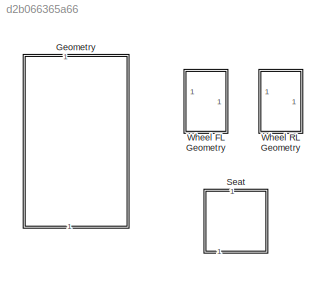
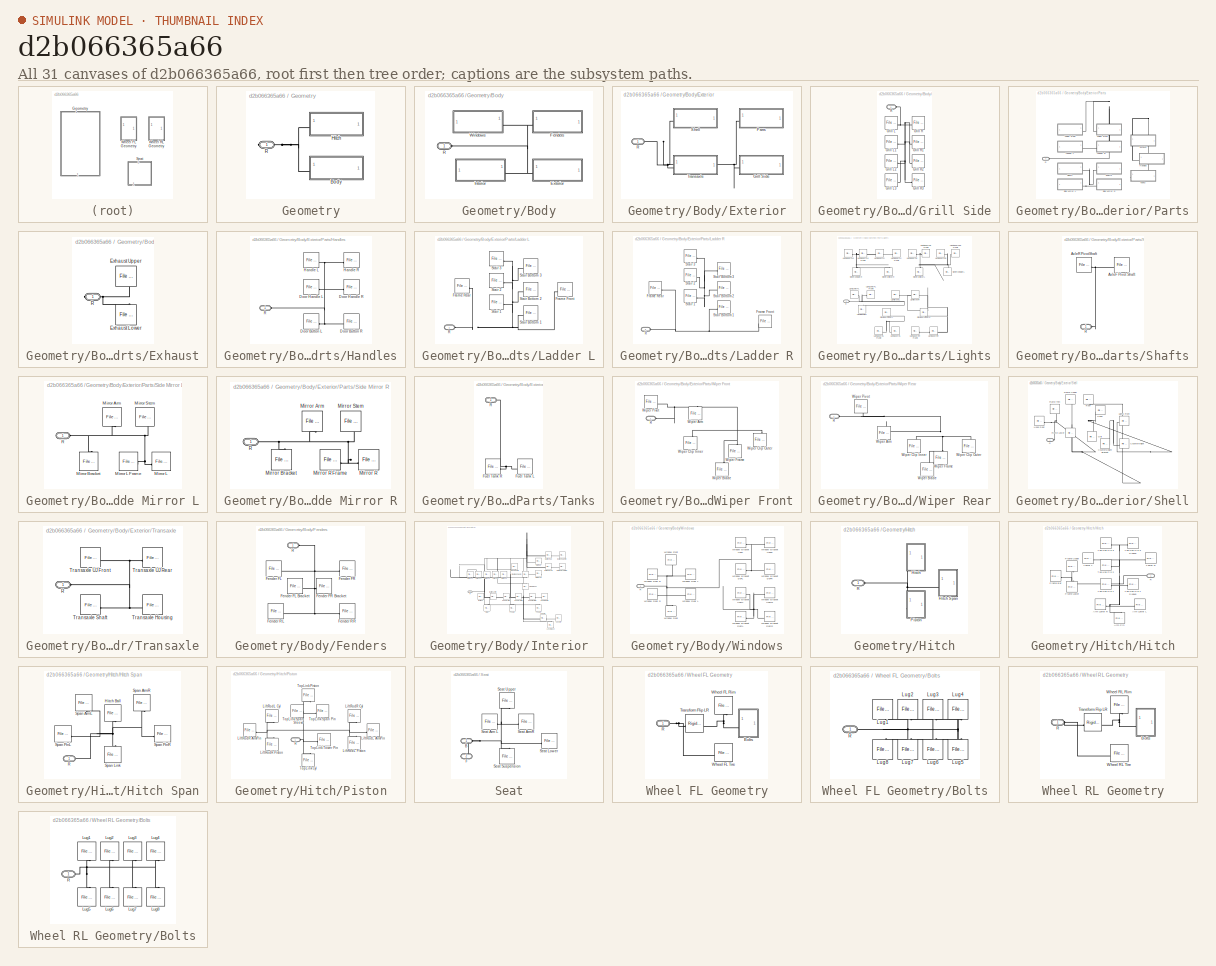
[diagram: thumbnail index - all 31 canvases of the model, root first then tree order]
MODEL slx_d2b066365a66
KIND library
CONFIG SolverName = VariableStepAuto
BLOCK [SubSystem] Geometry
BLOCK [SubSystem] Geometry/Body
BLOCK [SubSystem] Geometry/Body/Exterior
BLOCK [SubSystem] Geometry/Body/Exterior/Grill Side
BLOCK [Reference] Geometry/Body/Exterior/Grill Side/Grill L  REF=sm_lib/Body Elements/File Solid
  SourceBlock = sm_lib/Body Elements/File Solid
  SourceType = File Solid
BLOCK [Reference] Geometry/Body/Exterior/Grill Side/Grill L1  REF=sm_lib/Body Elements/File Solid
  SourceBlock = sm_lib/Body Elements/File Solid
  SourceType = File Solid
BLOCK [Reference] Geometry/Body/Exterior/Grill Side/Grill L2  REF=sm_lib/Body Elements/File Solid
  SourceBlock = sm_lib/Body Elements/File Solid
  SourceType = File Solid
BLOCK [Reference] Geometry/Body/Exterior/Grill Side/Grill L3  REF=sm_lib/Body Elements/File Solid
  SourceBlock = sm_lib/Body Elements/File Solid
  SourceType = File Solid
BLOCK [Reference] Geometry/Body/Exterior/Grill Side/Grill R  REF=sm_lib/Body Elements/File Solid
  SourceBlock = sm_lib/Body Elements/File Solid
  SourceType = File Solid
BLOCK [Reference] Geometry/Body/Exterior/Grill Side/Grill R1  REF=sm_lib/Body Elements/File Solid
  SourceBlock = sm_lib/Body Elements/File Solid
  SourceType = File Solid
BLOCK [Reference] Geometry/Body/Exterior/Grill Side/Grill R2  REF=sm_lib/Body Elements/File Solid
  SourceBlock = sm_lib/Body Elements/File Solid
  SourceType = File Solid
BLOCK [Reference] Geometry/Body/Exterior/Grill Side/Grill R3  REF=sm_lib/Body Elements/File Solid
  SourceBlock = sm_lib/Body Elements/File Solid
  SourceType = File Solid
BLOCK [PMIOPort] Geometry/Body/Exterior/Grill Side/R
  Side = Left
BLOCK [SubSystem] Geometry/Body/Exterior/Parts
BLOCK [SubSystem] Geometry/Body/Exterior/Parts/Exhaust
BLOCK [Reference] Geometry/Body/Exterior/Parts/Exhaust/Exhaust Lower  REF=sm_lib/Body Elements/File Solid
  SourceBlock = sm_lib/Body Elements/File Solid
  SourceType = File Solid
BLOCK [Reference] Geometry/Body/Exterior/Parts/Exhaust/Exhaust Upper  REF=sm_lib/Body Elements/File Solid
  NameLocation = top
  SourceBlock = sm_lib/Body Elements/File Solid
  SourceType = File Solid
BLOCK [PMIOPort] Geometry/Body/Exterior/Parts/Exhaust/R
  Side = Right
BLOCK [SubSystem] Geometry/Body/Exterior/Parts/Handles
BLOCK [Reference] Geometry/Body/Exterior/Parts/Handles/Door Button L  REF=sm_lib/Body Elements/File Solid
  SourceBlock = sm_lib/Body Elements/File Solid
  SourceType = File Solid
BLOCK [Reference] Geometry/Body/Exterior/Parts/Handles/Door Button R  REF=sm_lib/Body Elements/File Solid
  SourceBlock = sm_lib/Body Elements/File Solid
  SourceType = File Solid
BLOCK [Reference] Geometry/Body/Exterior/Parts/Handles/Door Handle L  REF=sm_lib/Body Elements/File Solid
  SourceBlock = sm_lib/Body Elements/File Solid
  SourceType = File Solid
BLOCK [Reference] Geometry/Body/Exterior/Parts/Handles/Door Handle R  REF=sm_lib/Body Elements/File Solid
  SourceBlock = sm_lib/Body Elements/File Solid
  SourceType = File Solid
BLOCK [Reference] Geometry/Body/Exterior/Parts/Handles/Handle L  REF=sm_lib/Body Elements/File Solid
  SourceBlock = sm_lib/Body Elements/File Solid
  SourceType = File Solid
BLOCK [Reference] Geometry/Body/Exterior/Parts/Handles/Handle R  REF=sm_lib/Body Elements/File Solid
  SourceBlock = sm_lib/Body Elements/File Solid
  SourceType = File Solid
BLOCK [PMIOPort] Geometry/Body/Exterior/Parts/Handles/R
  Side = Left
BLOCK [SubSystem] Geometry/Body/Exterior/Parts/Ladder L
BLOCK [Reference] Geometry/Body/Exterior/Parts/Ladder L/Frame Front  REF=sm_lib/Body Elements/File Solid
  SourceBlock = sm_lib/Body Elements/File Solid
  SourceType = File Solid
BLOCK [Reference] Geometry/Body/Exterior/Parts/Ladder L/Frame Rear  REF=sm_lib/Body Elements/File Solid
  SourceBlock = sm_lib/Body Elements/File Solid
  SourceType = File Solid
BLOCK [PMIOPort] Geometry/Body/Exterior/Parts/Ladder L/R
  Side = Left
BLOCK [Reference] Geometry/Body/Exterior/Parts/Ladder L/Stair 1  REF=sm_lib/Body Elements/File Solid
  SourceBlock = sm_lib/Body Elements/File Solid
  SourceType = File Solid
BLOCK [Reference] Geometry/Body/Exterior/Parts/Ladder L/Stair 2  REF=sm_lib/Body Elements/File Solid
  SourceBlock = sm_lib/Body Elements/File Solid
  SourceType = File Solid
BLOCK [Reference] Geometry/Body/Exterior/Parts/Ladder L/Stair 3  REF=sm_lib/Body Elements/File Solid
  SourceBlock = sm_lib/Body Elements/File Solid
  SourceType = File Solid
BLOCK [Reference] Geometry/Body/Exterior/Parts/Ladder L/Stair Bottom 1  REF=sm_lib/Body Elements/File Solid
  SourceBlock = sm_lib/Body Elements/File Solid
  SourceType = File Solid
BLOCK [Reference] Geometry/Body/Exterior/Parts/Ladder L/Stair Bottom 2  REF=sm_lib/Body Elements/File Solid
  SourceBlock = sm_lib/Body Elements/File Solid
  SourceType = File Solid
BLOCK [Reference] Geometry/Body/Exterior/Parts/Ladder L/Stair Bottom 3  REF=sm_lib/Body Elements/File Solid
  SourceBlock = sm_lib/Body Elements/File Solid
  SourceType = File Solid
BLOCK [SubSystem] Geometry/Body/Exterior/Parts/Ladder R
BLOCK [Reference] Geometry/Body/Exterior/Parts/Ladder R/Frame Front  REF=sm_lib/Body Elements/File Solid
  SourceBlock = sm_lib/Body Elements/File Solid
  SourceType = File Solid
BLOCK [Reference] Geometry/Body/Exterior/Parts/Ladder R/Frame Rear  REF=sm_lib/Body Elements/File Solid
  SourceBlock = sm_lib/Body Elements/File Solid
  SourceType = File Solid
BLOCK [PMIOPort] Geometry/Body/Exterior/Parts/Ladder R/R
  Side = Left
BLOCK [Reference] Geometry/Body/Exterior/Parts/Ladder R/Stair 1  REF=sm_lib/Body Elements/File Solid
  SourceBlock = sm_lib/Body Elements/File Solid
  SourceType = File Solid
BLOCK [Reference] Geometry/Body/Exterior/Parts/Ladder R/Stair 2  REF=sm_lib/Body Elements/File Solid
  SourceBlock = sm_lib/Body Elements/File Solid
  SourceType = File Solid
BLOCK [Reference] Geometry/Body/Exterior/Parts/Ladder R/Stair 3  REF=sm_lib/Body Elements/File Solid
  SourceBlock = sm_lib/Body Elements/File Solid
  SourceType = File Solid
BLOCK [Reference] Geometry/Body/Exterior/Parts/Ladder R/Stair Bottom 1  REF=sm_lib/Body Elements/File Solid
  SourceBlock = sm_lib/Body Elements/File Solid
  SourceType = File Solid
BLOCK [Reference] Geometry/Body/Exterior/Parts/Ladder R/Stair Bottom 2  REF=sm_lib/Body Elements/File Solid
  SourceBlock = sm_lib/Body Elements/File Solid
  SourceType = File Solid
BLOCK [Reference] Geometry/Body/Exterior/Parts/Ladder R/Stair Bottom 3  REF=sm_lib/Body Elements/File Solid
  SourceBlock = sm_lib/Body Elements/File Solid
  SourceType = File Solid
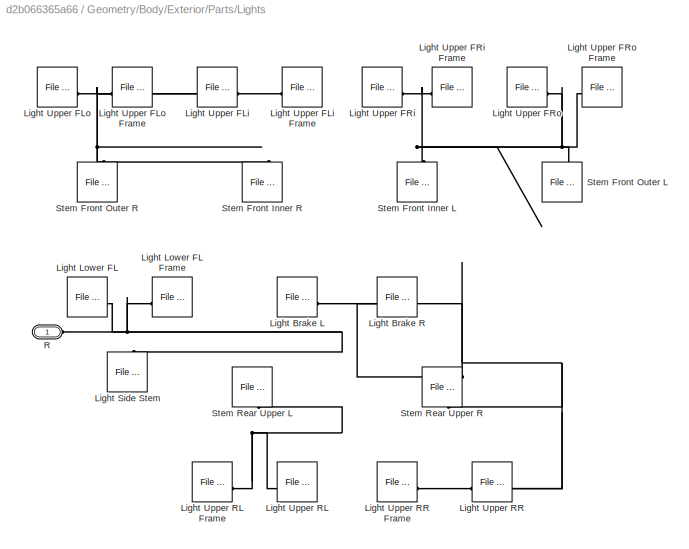
BLOCK [SubSystem] Geometry/Body/Exterior/Parts/Lights
BLOCK [Reference] Geometry/Body/Exterior/Parts/Lights/Light Brake L  REF=sm_lib/Body Elements/File Solid
  NameLocation = top
  SourceBlock = sm_lib/Body Elements/File Solid
  SourceType = File Solid
BLOCK [Reference] Geometry/Body/Exterior/Parts/Lights/Light Brake R  REF=sm_lib/Body Elements/File Solid
  NameLocation = top
  SourceBlock = sm_lib/Body Elements/File Solid
  SourceType = File Solid
BLOCK [Reference] Geometry/Body/Exterior/Parts/Lights/Light Lower FL  REF=sm_lib/Body Elements/File Solid
  NameLocation = top
  SourceBlock = sm_lib/Body Elements/File Solid
  SourceType = File Solid
BLOCK [Reference] Geometry/Body/Exterior/Parts/Lights/Light Lower FL Frame  REF=sm_lib/Body Elements/File Solid
  NameLocation = top
  SourceBlock = sm_lib/Body Elements/File Solid
  SourceType = File Solid
BLOCK [Reference] Geometry/Body/Exterior/Parts/Lights/Light Side Stem  REF=sm_lib/Body Elements/File Solid
  SourceBlock = sm_lib/Body Elements/File Solid
  SourceType = File Solid
BLOCK [Reference] Geometry/Body/Exterior/Parts/Lights/Light Upper FLi  REF=sm_lib/Body Elements/File Solid
  NameLocation = top
  SourceBlock = sm_lib/Body Elements/File Solid
  SourceType = File Solid
BLOCK [Reference] Geometry/Body/Exterior/Parts/Lights/Light Upper FLi Frame  REF=sm_lib/Body Elements/File Solid
  NameLocation = top
  SourceBlock = sm_lib/Body Elements/File Solid
  SourceType = File Solid
BLOCK [Reference] Geometry/Body/Exterior/Parts/Lights/Light Upper FLo  REF=sm_lib/Body Elements/File Solid
  NameLocation = top
  SourceBlock = sm_lib/Body Elements/File Solid
  SourceType = File Solid
BLOCK [Reference] Geometry/Body/Exterior/Parts/Lights/Light Upper FLo Frame  REF=sm_lib/Body Elements/File Solid
  NameLocation = top
  SourceBlock = sm_lib/Body Elements/File Solid
  SourceType = File Solid
BLOCK [Reference] Geometry/Body/Exterior/Parts/Lights/Light Upper FRi  REF=sm_lib/Body Elements/File Solid
  NameLocation = top
  SourceBlock = sm_lib/Body Elements/File Solid
  SourceType = File Solid
BLOCK [Reference] Geometry/Body/Exterior/Parts/Lights/Light Upper FRi Frame  REF=sm_lib/Body Elements/File Solid
  NameLocation = top
  SourceBlock = sm_lib/Body Elements/File Solid
  SourceType = File Solid
BLOCK [Reference] Geometry/Body/Exterior/Parts/Lights/Light Upper FRo  REF=sm_lib/Body Elements/File Solid
  NameLocation = top
  SourceBlock = sm_lib/Body Elements/File Solid
  SourceType = File Solid
BLOCK [Reference] Geometry/Body/Exterior/Parts/Lights/Light Upper FRo Frame  REF=sm_lib/Body Elements/File Solid
  NameLocation = top
  SourceBlock = sm_lib/Body Elements/File Solid
  SourceType = File Solid
BLOCK [Reference] Geometry/Body/Exterior/Parts/Lights/Light Upper RL  REF=sm_lib/Body Elements/File Solid
  SourceBlock = sm_lib/Body Elements/File Solid
  SourceType = File Solid
BLOCK [Reference] Geometry/Body/Exterior/Parts/Lights/Light Upper RL Frame  REF=sm_lib/Body Elements/File Solid
  SourceBlock = sm_lib/Body Elements/File Solid
  SourceType = File Solid
BLOCK [Reference] Geometry/Body/Exterior/Parts/Lights/Light Upper RR  REF=sm_lib/Body Elements/File Solid
  SourceBlock = sm_lib/Body Elements/File Solid
  SourceType = File Solid
BLOCK [Reference] Geometry/Body/Exterior/Parts/Lights/Light Upper RR Frame  REF=sm_lib/Body Elements/File Solid
  SourceBlock = sm_lib/Body Elements/File Solid
  SourceType = File Solid
BLOCK [PMIOPort] Geometry/Body/Exterior/Parts/Lights/R
  Side = Left
BLOCK [Reference] Geometry/Body/Exterior/Parts/Lights/Stem Front Inner L  REF=sm_lib/Body Elements/File Solid
  SourceBlock = sm_lib/Body Elements/File Solid
  SourceType = File Solid
BLOCK [Reference] Geometry/Body/Exterior/Parts/Lights/Stem Front Inner R  REF=sm_lib/Body Elements/File Solid
  SourceBlock = sm_lib/Body Elements/File Solid
  SourceType = File Solid
BLOCK [Reference] Geometry/Body/Exterior/Parts/Lights/Stem Front Outer L  REF=sm_lib/Body Elements/File Solid
  SourceBlock = sm_lib/Body Elements/File Solid
  SourceType = File Solid
BLOCK [Reference] Geometry/Body/Exterior/Parts/Lights/Stem Front Outer R  REF=sm_lib/Body Elements/File Solid
  SourceBlock = sm_lib/Body Elements/File Solid
  SourceType = File Solid
BLOCK [Reference] Geometry/Body/Exterior/Parts/Lights/Stem Rear Upper L  REF=sm_lib/Body Elements/File Solid
  NameLocation = top
  SourceBlock = sm_lib/Body Elements/File Solid
  SourceType = File Solid
BLOCK [Reference] Geometry/Body/Exterior/Parts/Lights/Stem Rear Upper R  REF=sm_lib/Body Elements/File Solid
  NameLocation = top
  SourceBlock = sm_lib/Body Elements/File Solid
  SourceType = File Solid
BLOCK [PMIOPort] Geometry/Body/Exterior/Parts/R
  Side = Left
BLOCK [SubSystem] Geometry/Body/Exterior/Parts/Shafts
BLOCK [Reference] Geometry/Body/Exterior/Parts/Shafts/AxleF Pivot Shaft  REF=sm_lib/Body Elements/File Solid
  NameLocation = top
  SourceBlock = sm_lib/Body Elements/File Solid
  SourceType = File Solid
BLOCK [Reference] Geometry/Body/Exterior/Parts/Shafts/AxleR PivotShaft  REF=sm_lib/Body Elements/File Solid
  NameLocation = top
  SourceBlock = sm_lib/Body Elements/File Solid
  SourceType = File Solid
BLOCK [PMIOPort] Geometry/Body/Exterior/Parts/Shafts/R
  Side = Left
BLOCK [SubSystem] Geometry/Body/Exterior/Parts/Side Mirror L
BLOCK [Reference] Geometry/Body/Exterior/Parts/Side Mirror L/Mirror Arm  REF=sm_lib/Body Elements/File Solid
  NameLocation = top
  SourceBlock = sm_lib/Body Elements/File Solid
  SourceType = File Solid
BLOCK [Reference] Geometry/Body/Exterior/Parts/Side Mirror L/Mirror Bracket  REF=sm_lib/Body Elements/File Solid
  SourceBlock = sm_lib/Body Elements/File Solid
  SourceType = File Solid
BLOCK [Reference] Geometry/Body/Exterior/Parts/Side Mirror L/Mirror L  REF=sm_lib/Body Elements/File Solid
  SourceBlock = sm_lib/Body Elements/File Solid
  SourceType = File Solid
BLOCK [Reference] Geometry/Body/Exterior/Parts/Side Mirror L/Mirror L Frame  REF=sm_lib/Body Elements/File Solid
  SourceBlock = sm_lib/Body Elements/File Solid
  SourceType = File Solid
BLOCK [Reference] Geometry/Body/Exterior/Parts/Side Mirror L/Mirror Stem  REF=sm_lib/Body Elements/File Solid
  NameLocation = top
  SourceBlock = sm_lib/Body Elements/File Solid
  SourceType = File Solid
BLOCK [PMIOPort] Geometry/Body/Exterior/Parts/Side Mirror L/R
  Side = Left
BLOCK [SubSystem] Geometry/Body/Exterior/Parts/Side Mirror R
BLOCK [Reference] Geometry/Body/Exterior/Parts/Side Mirror R/Mirror Arm  REF=sm_lib/Body Elements/File Solid
  NameLocation = top
  SourceBlock = sm_lib/Body Elements/File Solid
  SourceType = File Solid
BLOCK [Reference] Geometry/Body/Exterior/Parts/Side Mirror R/Mirror Bracket  REF=sm_lib/Body Elements/File Solid
  SourceBlock = sm_lib/Body Elements/File Solid
  SourceType = File Solid
BLOCK [Reference] Geometry/Body/Exterior/Parts/Side Mirror R/Mirror R  REF=sm_lib/Body Elements/File Solid
  SourceBlock = sm_lib/Body Elements/File Solid
  SourceType = File Solid
BLOCK [Reference] Geometry/Body/Exterior/Parts/Side Mirror R/Mirror R Frame  REF=sm_lib/Body Elements/File Solid
  SourceBlock = sm_lib/Body Elements/File Solid
  SourceType = File Solid
BLOCK [Reference] Geometry/Body/Exterior/Parts/Side Mirror R/Mirror Stem  REF=sm_lib/Body Elements/File Solid
  NameLocation = top
  SourceBlock = sm_lib/Body Elements/File Solid
  SourceType = File Solid
BLOCK [PMIOPort] Geometry/Body/Exterior/Parts/Side Mirror R/R
  Side = Left
BLOCK [SubSystem] Geometry/Body/Exterior/Parts/Tanks
BLOCK [Reference] Geometry/Body/Exterior/Parts/Tanks/Fuel Tank L  REF=sm_lib/Body Elements/File Solid
  SourceBlock = sm_lib/Body Elements/File Solid
  SourceType = File Solid
BLOCK [Reference] Geometry/Body/Exterior/Parts/Tanks/Fuel Tank R  REF=sm_lib/Body Elements/File Solid
  SourceBlock = sm_lib/Body Elements/File Solid
  SourceType = File Solid
BLOCK [PMIOPort] Geometry/Body/Exterior/Parts/Tanks/R
  Side = Left
BLOCK [SubSystem] Geometry/Body/Exterior/Parts/Wiper Front
BLOCK [PMIOPort] Geometry/Body/Exterior/Parts/Wiper Front/R
  Side = Left
BLOCK [Reference] Geometry/Body/Exterior/Parts/Wiper Front/Wiper Arm  REF=sm_lib/Body Elements/File Solid
  NameLocation = right
  SourceBlock = sm_lib/Body Elements/File Solid
  SourceType = File Solid
BLOCK [Reference] Geometry/Body/Exterior/Parts/Wiper Front/Wiper Blade  REF=sm_lib/Body Elements/File Solid
  NameLocation = right
  SourceBlock = sm_lib/Body Elements/File Solid
  SourceType = File Solid
BLOCK [Reference] Geometry/Body/Exterior/Parts/Wiper Front/Wiper Clip Inner  REF=sm_lib/Body Elements/File Solid
  NameLocation = left
  SourceBlock = sm_lib/Body Elements/File Solid
  SourceType = File Solid
BLOCK [Reference] Geometry/Body/Exterior/Parts/Wiper Front/Wiper Clip Outer  REF=sm_lib/Body Elements/File Solid
  NameLocation = right
  SourceBlock = sm_lib/Body Elements/File Solid
  SourceType = File Solid
BLOCK [Reference] Geometry/Body/Exterior/Parts/Wiper Front/Wiper Frame  REF=sm_lib/Body Elements/File Solid
  NameLocation = right
  SourceBlock = sm_lib/Body Elements/File Solid
  SourceType = File Solid
BLOCK [Reference] Geometry/Body/Exterior/Parts/Wiper Front/Wiper Pivot  REF=sm_lib/Body Elements/File Solid
  SourceBlock = sm_lib/Body Elements/File Solid
  SourceType = File Solid
BLOCK [SubSystem] Geometry/Body/Exterior/Parts/Wiper Rear
BLOCK [PMIOPort] Geometry/Body/Exterior/Parts/Wiper Rear/R
  Side = Left
BLOCK [Reference] Geometry/Body/Exterior/Parts/Wiper Rear/Wiper Arm  REF=sm_lib/Body Elements/File Solid
  NameLocation = left
  SourceBlock = sm_lib/Body Elements/File Solid
  SourceType = File Solid
BLOCK [Reference] Geometry/Body/Exterior/Parts/Wiper Rear/Wiper Blade  REF=sm_lib/Body Elements/File Solid
  NameLocation = right
  SourceBlock = sm_lib/Body Elements/File Solid
  SourceType = File Solid
BLOCK [Reference] Geometry/Body/Exterior/Parts/Wiper Rear/Wiper Clip Inner  REF=sm_lib/Body Elements/File Solid
  NameLocation = left
  SourceBlock = sm_lib/Body Elements/File Solid
  SourceType = File Solid
BLOCK [Reference] Geometry/Body/Exterior/Parts/Wiper Rear/Wiper Clip Outer  REF=sm_lib/Body Elements/File Solid
  NameLocation = right
  SourceBlock = sm_lib/Body Elements/File Solid
  SourceType = File Solid
BLOCK [Reference] Geometry/Body/Exterior/Parts/Wiper Rear/Wiper Frame  REF=sm_lib/Body Elements/File Solid
  NameLocation = right
  SourceBlock = sm_lib/Body Elements/File Solid
  SourceType = File Solid
BLOCK [Reference] Geometry/Body/Exterior/Parts/Wiper Rear/Wiper Pivot  REF=sm_lib/Body Elements/File Solid
  NameLocation = left
  SourceBlock = sm_lib/Body Elements/File Solid
  SourceType = File Solid
BLOCK [PMIOPort] Geometry/Body/Exterior/R
  Side = Left
BLOCK [SubSystem] Geometry/Body/Exterior/Shell
BLOCK [Reference] Geometry/Body/Exterior/Shell/Counterweight  REF=sm_lib/Body Elements/File Solid
  SourceBlock = sm_lib/Body Elements/File Solid
  SourceType = File Solid
BLOCK [Reference] Geometry/Body/Exterior/Shell/Counterweight Bracket  REF=sm_lib/Body Elements/File Solid
  SourceBlock = sm_lib/Body Elements/File Solid
  SourceType = File Solid
BLOCK [Reference] Geometry/Body/Exterior/Shell/Frame Lower  REF=sm_lib/Body Elements/File Solid
  SourceBlock = sm_lib/Body Elements/File Solid
  SourceType = File Solid
BLOCK [Reference] Geometry/Body/Exterior/Shell/Frame Trim  REF=sm_lib/Body Elements/File Solid
  NameLocation = top
  SourceBlock = sm_lib/Body Elements/File Solid
  SourceType = File Solid
BLOCK [Reference] Geometry/Body/Exterior/Shell/Frame Upper  REF=sm_lib/Body Elements/File Solid
  NameLocation = top
  SourceBlock = sm_lib/Body Elements/File Solid
  SourceType = File Solid
BLOCK [Reference] Geometry/Body/Exterior/Shell/Grill  REF=sm_lib/Body Elements/File Solid
  SourceBlock = sm_lib/Body Elements/File Solid
  SourceType = File Solid
BLOCK [Reference] Geometry/Body/Exterior/Shell/Hood  REF=sm_lib/Body Elements/File Solid
  SourceBlock = sm_lib/Body Elements/File Solid
  SourceType = File Solid
BLOCK [Reference] Geometry/Body/Exterior/Shell/Hood Rear  REF=sm_lib/Body Elements/File Solid
  SourceBlock = sm_lib/Body Elements/File Solid
  SourceType = File Solid
BLOCK [Reference] Geometry/Body/Exterior/Shell/Lights Front  REF=sm_lib/Body Elements/File Solid
  SourceBlock = sm_lib/Body Elements/File Solid
  SourceType = File Solid
BLOCK [PMIOPort] Geometry/Body/Exterior/Shell/R
  Side = Left
BLOCK [Reference] Geometry/Body/Exterior/Shell/Roof  REF=sm_lib/Body Elements/File Solid
  NameLocation = top
  SourceBlock = sm_lib/Body Elements/File Solid
  SourceType = File Solid
BLOCK [SubSystem] Geometry/Body/Exterior/Transaxle
BLOCK [PMIOPort] Geometry/Body/Exterior/Transaxle/R
  Side = Left
BLOCK [Reference] Geometry/Body/Exterior/Transaxle/Transaxle Housing  REF=sm_lib/Body Elements/File Solid
  SourceBlock = sm_lib/Body Elements/File Solid
  SourceType = File Solid
BLOCK [Reference] Geometry/Body/Exterior/Transaxle/Transaxle Shaft  REF=sm_lib/Body Elements/File Solid
  SourceBlock = sm_lib/Body Elements/File Solid
  SourceType = File Solid
BLOCK [Reference] Geometry/Body/Exterior/Transaxle/Transaxle UJ Front  REF=sm_lib/Body Elements/File Solid
  SourceBlock = sm_lib/Body Elements/File Solid
  SourceType = File Solid
BLOCK [Reference] Geometry/Body/Exterior/Transaxle/Transaxle UJ Rear  REF=sm_lib/Body Elements/File Solid
  SourceBlock = sm_lib/Body Elements/File Solid
  SourceType = File Solid
BLOCK [SubSystem] Geometry/Body/Fenders
BLOCK [Reference] Geometry/Body/Fenders/Fender FL  REF=sm_lib/Body Elements/File Solid
  SourceBlock = sm_lib/Body Elements/File Solid
  SourceType = File Solid
BLOCK [Reference] Geometry/Body/Fenders/Fender FL Bracket  REF=sm_lib/Body Elements/File Solid
  SourceBlock = sm_lib/Body Elements/File Solid
  SourceType = File Solid
BLOCK [Reference] Geometry/Body/Fenders/Fender FR  REF=sm_lib/Body Elements/File Solid
  SourceBlock = sm_lib/Body Elements/File Solid
  SourceType = File Solid
BLOCK [Reference] Geometry/Body/Fenders/Fender FR Bracket  REF=sm_lib/Body Elements/File Solid
  SourceBlock = sm_lib/Body Elements/File Solid
  SourceType = File Solid
BLOCK [Reference] Geometry/Body/Fenders/Fender RL  REF=sm_lib/Body Elements/File Solid
  SourceBlock = sm_lib/Body Elements/File Solid
  SourceType = File Solid
BLOCK [Reference] Geometry/Body/Fenders/Fender RR  REF=sm_lib/Body Elements/File Solid
  SourceBlock = sm_lib/Body Elements/File Solid
  SourceType = File Solid
BLOCK [PMIOPort] Geometry/Body/Fenders/R
  Side = Left
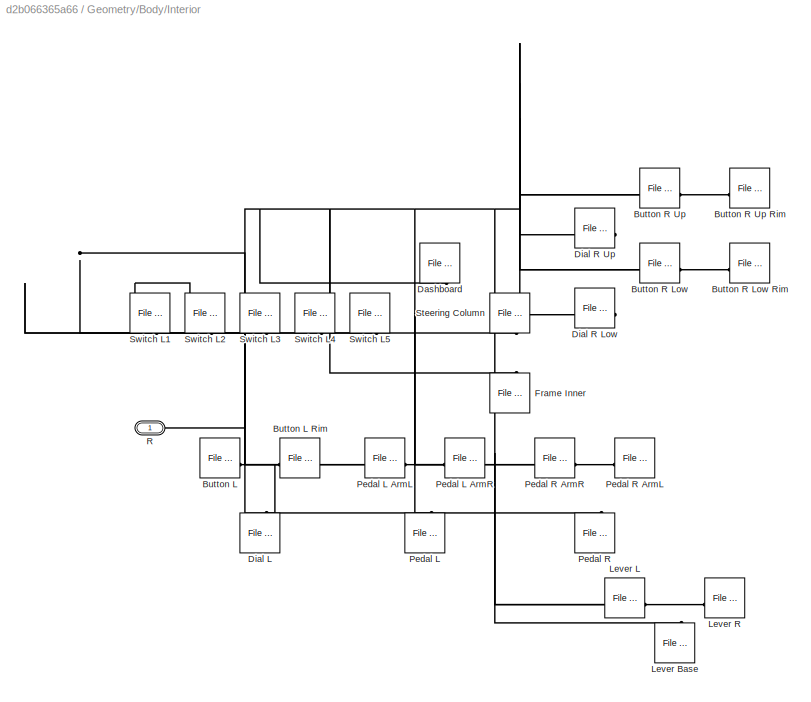
BLOCK [SubSystem] Geometry/Body/Interior
BLOCK [Reference] Geometry/Body/Interior/Button L  REF=sm_lib/Body Elements/File Solid
  SourceBlock = sm_lib/Body Elements/File Solid
  SourceType = File Solid
BLOCK [Reference] Geometry/Body/Interior/Button L Rim  REF=sm_lib/Body Elements/File Solid
  SourceBlock = sm_lib/Body Elements/File Solid
  SourceType = File Solid
BLOCK [Reference] Geometry/Body/Interior/Button R Low  REF=sm_lib/Body Elements/File Solid
  SourceBlock = sm_lib/Body Elements/File Solid
  SourceType = File Solid
BLOCK [Reference] Geometry/Body/Interior/Button R Low Rim  REF=sm_lib/Body Elements/File Solid
  SourceBlock = sm_lib/Body Elements/File Solid
  SourceType = File Solid
BLOCK [Reference] Geometry/Body/Interior/Button R Up  REF=sm_lib/Body Elements/File Solid
  SourceBlock = sm_lib/Body Elements/File Solid
  SourceType = File Solid
BLOCK [Reference] Geometry/Body/Interior/Button R Up Rim  REF=sm_lib/Body Elements/File Solid
  SourceBlock = sm_lib/Body Elements/File Solid
  SourceType = File Solid
BLOCK [Reference] Geometry/Body/Interior/Dashboard  REF=sm_lib/Body Elements/File Solid
  NameLocation = top
  SourceBlock = sm_lib/Body Elements/File Solid
  SourceType = File Solid
BLOCK [Reference] Geometry/Body/Interior/Dial L  REF=sm_lib/Body Elements/File Solid
  SourceBlock = sm_lib/Body Elements/File Solid
  SourceType = File Solid
BLOCK [Reference] Geometry/Body/Interior/Dial R Low  REF=sm_lib/Body Elements/File Solid
  SourceBlock = sm_lib/Body Elements/File Solid
  SourceType = File Solid
BLOCK [Reference] Geometry/Body/Interior/Dial R Up  REF=sm_lib/Body Elements/File Solid
  SourceBlock = sm_lib/Body Elements/File Solid
  SourceType = File Solid
BLOCK [Reference] Geometry/Body/Interior/Frame Inner  REF=sm_lib/Body Elements/File Solid
  SourceBlock = sm_lib/Body Elements/File Solid
  SourceType = File Solid
BLOCK [Reference] Geometry/Body/Interior/Lever Base  REF=sm_lib/Body Elements/File Solid
  SourceBlock = sm_lib/Body Elements/File Solid
  SourceType = File Solid
BLOCK [Reference] Geometry/Body/Interior/Lever L  REF=sm_lib/Body Elements/File Solid
  SourceBlock = sm_lib/Body Elements/File Solid
  SourceType = File Solid
BLOCK [Reference] Geometry/Body/Interior/Lever R  REF=sm_lib/Body Elements/File Solid
  SourceBlock = sm_lib/Body Elements/File Solid
  SourceType = File Solid
BLOCK [Reference] Geometry/Body/Interior/Pedal L  REF=sm_lib/Body Elements/File Solid
  SourceBlock = sm_lib/Body Elements/File Solid
  SourceType = File Solid
BLOCK [Reference] Geometry/Body/Interior/Pedal L ArmL  REF=sm_lib/Body Elements/File Solid
  SourceBlock = sm_lib/Body Elements/File Solid
  SourceType = File Solid
BLOCK [Reference] Geometry/Body/Interior/Pedal L ArmR  REF=sm_lib/Body Elements/File Solid
  SourceBlock = sm_lib/Body Elements/File Solid
  SourceType = File Solid
BLOCK [Reference] Geometry/Body/Interior/Pedal R  REF=sm_lib/Body Elements/File Solid
  SourceBlock = sm_lib/Body Elements/File Solid
  SourceType = File Solid
BLOCK [Reference] Geometry/Body/Interior/Pedal R ArmL  REF=sm_lib/Body Elements/File Solid
  SourceBlock = sm_lib/Body Elements/File Solid
  SourceType = File Solid
BLOCK [Reference] Geometry/Body/Interior/Pedal R ArmR  REF=sm_lib/Body Elements/File Solid
  SourceBlock = sm_lib/Body Elements/File Solid
  SourceType = File Solid
BLOCK [PMIOPort] Geometry/Body/Interior/R
  Side = Left
BLOCK [Reference] Geometry/Body/Interior/Steering Column  REF=sm_lib/Body Elements/File Solid
  NameLocation = top
  SourceBlock = sm_lib/Body Elements/File Solid
  SourceType = File Solid
BLOCK [Reference] Geometry/Body/Interior/Switch L1  REF=sm_lib/Body Elements/File Solid
  NameLocation = top
  SourceBlock = sm_lib/Body Elements/File Solid
  SourceType = File Solid
BLOCK [Reference] Geometry/Body/Interior/Switch L2  REF=sm_lib/Body Elements/File Solid
  NameLocation = top
  SourceBlock = sm_lib/Body Elements/File Solid
  SourceType = File Solid
BLOCK [Reference] Geometry/Body/Interior/Switch L3  REF=sm_lib/Body Elements/File Solid
  NameLocation = top
  SourceBlock = sm_lib/Body Elements/File Solid
  SourceType = File Solid
BLOCK [Reference] Geometry/Body/Interior/Switch L4  REF=sm_lib/Body Elements/File Solid
  NameLocation = top
  SourceBlock = sm_lib/Body Elements/File Solid
  SourceType = File Solid
BLOCK [Reference] Geometry/Body/Interior/Switch L5  REF=sm_lib/Body Elements/File Solid
  NameLocation = top
  SourceBlock = sm_lib/Body Elements/File Solid
  SourceType = File Solid
BLOCK [PMIOPort] Geometry/Body/R
  Side = Left
BLOCK [SubSystem] Geometry/Body/Windows
BLOCK [PMIOPort] Geometry/Body/Windows/R
  Side = Left
BLOCK [Reference] Geometry/Body/Windows/Window Bracket DoFL  REF=sm_lib/Body Elements/File Solid
  SourceBlock = sm_lib/Body Elements/File Solid
  SourceType = File Solid
BLOCK [Reference] Geometry/Body/Windows/Window Bracket DoFR  REF=sm_lib/Body Elements/File Solid
  SourceBlock = sm_lib/Body Elements/File Solid
  SourceType = File Solid
BLOCK [Reference] Geometry/Body/Windows/Window Bracket DoRL  REF=sm_lib/Body Elements/File Solid
  SourceBlock = sm_lib/Body Elements/File Solid
  SourceType = File Solid
BLOCK [Reference] Geometry/Body/Windows/Window Bracket DoRR  REF=sm_lib/Body Elements/File Solid
  SourceBlock = sm_lib/Body Elements/File Solid
  SourceType = File Solid
BLOCK [Reference] Geometry/Body/Windows/Window Bracket UpFL  REF=sm_lib/Body Elements/File Solid
  SourceBlock = sm_lib/Body Elements/File Solid
  SourceType = File Solid
BLOCK [Reference] Geometry/Body/Windows/Window Bracket UpFR  REF=sm_lib/Body Elements/File Solid
  SourceBlock = sm_lib/Body Elements/File Solid
  SourceType = File Solid
BLOCK [Reference] Geometry/Body/Windows/Window Bracket UpRL  REF=sm_lib/Body Elements/File Solid
  SourceBlock = sm_lib/Body Elements/File Solid
  SourceType = File Solid
BLOCK [Reference] Geometry/Body/Windows/Window Bracket UpRR  REF=sm_lib/Body Elements/File Solid
  SourceBlock = sm_lib/Body Elements/File Solid
  SourceType = File Solid
BLOCK [Reference] Geometry/Body/Windows/Window Door L  REF=sm_lib/Body Elements/File Solid
  SourceBlock = sm_lib/Body Elements/File Solid
  SourceType = File Solid
BLOCK [Reference] Geometry/Body/Windows/Window Door R  REF=sm_lib/Body Elements/File Solid
  SourceBlock = sm_lib/Body Elements/File Solid
  SourceType = File Solid
BLOCK [Reference] Geometry/Body/Windows/Window Front  REF=sm_lib/Body Elements/File Solid
  NameLocation = right
  SourceBlock = sm_lib/Body Elements/File Solid
  SourceType = File Solid
BLOCK [Reference] Geometry/Body/Windows/Window Rear  REF=sm_lib/Body Elements/File Solid
  NameLocation = right
  SourceBlock = sm_lib/Body Elements/File Solid
  SourceType = File Solid
BLOCK [Reference] Geometry/Body/Windows/Window Rear L  REF=sm_lib/Body Elements/File Solid
  SourceBlock = sm_lib/Body Elements/File Solid
  SourceType = File Solid
BLOCK [Reference] Geometry/Body/Windows/Window Rear R  REF=sm_lib/Body Elements/File Solid
  SourceBlock = sm_lib/Body Elements/File Solid
  SourceType = File Solid
BLOCK [SubSystem] Geometry/Hitch
BLOCK [SubSystem] Geometry/Hitch/Hitch
BLOCK [SubSystem] Geometry/Hitch/Hitch Span
BLOCK [Reference] Geometry/Hitch/Hitch Span/Hitch Ball  REF=sm_lib/Body Elements/File Solid
  NameLocation = top
  SourceBlock = sm_lib/Body Elements/File Solid
  SourceType = File Solid
BLOCK [PMIOPort] Geometry/Hitch/Hitch Span/R
  Side = Left
BLOCK [Reference] Geometry/Hitch/Hitch Span/Span ArmL  REF=sm_lib/Body Elements/File Solid
  NameLocation = top
  SourceBlock = sm_lib/Body Elements/File Solid
  SourceType = File Solid
BLOCK [Reference] Geometry/Hitch/Hitch Span/Span ArmR  REF=sm_lib/Body Elements/File Solid
  NameLocation = top
  SourceBlock = sm_lib/Body Elements/File Solid
  SourceType = File Solid
BLOCK [Reference] Geometry/Hitch/Hitch Span/Span Link  REF=sm_lib/Body Elements/File Solid
  SourceBlock = sm_lib/Body Elements/File Solid
  SourceType = File Solid
BLOCK [Reference] Geometry/Hitch/Hitch Span/Span PinL  REF=sm_lib/Body Elements/File Solid
  SourceBlock = sm_lib/Body Elements/File Solid
  SourceType = File Solid
BLOCK [Reference] Geometry/Hitch/Hitch Span/Span PinR  REF=sm_lib/Body Elements/File Solid
  SourceBlock = sm_lib/Body Elements/File Solid
  SourceType = File Solid
BLOCK [Reference] Geometry/Hitch/Hitch/Arm Lower L  REF=sm_lib/Body Elements/File Solid
  SourceBlock = sm_lib/Body Elements/File Solid
  SourceType = File Solid
BLOCK [Reference] Geometry/Hitch/Hitch/Arm Lower R  REF=sm_lib/Body Elements/File Solid
  SourceBlock = sm_lib/Body Elements/File Solid
  SourceType = File Solid
BLOCK [Reference] Geometry/Hitch/Hitch/Arm Pin  REF=sm_lib/Body Elements/File Solid
  SourceBlock = sm_lib/Body Elements/File Solid
  SourceType = File Solid
BLOCK [Reference] Geometry/Hitch/Hitch/Frame Bar  REF=sm_lib/Body Elements/File Solid
  SourceBlock = sm_lib/Body Elements/File Solid
  SourceType = File Solid
BLOCK [Reference] Geometry/Hitch/Hitch/Frame Lower  REF=sm_lib/Body Elements/File Solid
  SourceBlock = sm_lib/Body Elements/File Solid
  SourceType = File Solid
BLOCK [Reference] Geometry/Hitch/Hitch/Frame Upper  REF=sm_lib/Body Elements/File Solid
  NameLocation = top
  SourceBlock = sm_lib/Body Elements/File Solid
  SourceType = File Solid
BLOCK [PMIOPort] Geometry/Hitch/Hitch/R
  Side = Left
BLOCK [Reference] Geometry/Hitch/Hitch/Top Link Pin 1  REF=sm_lib/Body Elements/File Solid
  SourceBlock = sm_lib/Body Elements/File Solid
  SourceType = File Solid
BLOCK [Reference] Geometry/Hitch/Hitch/Top Link Pin 1 Sleeve  REF=sm_lib/Body Elements/File Solid
  SourceBlock = sm_lib/Body Elements/File Solid
  SourceType = File Solid
BLOCK [Reference] Geometry/Hitch/Hitch/Top Link Pin 2  REF=sm_lib/Body Elements/File Solid
  SourceBlock = sm_lib/Body Elements/File Solid
  SourceType = File Solid
BLOCK [Reference] Geometry/Hitch/Hitch/Top Link Pin 3  REF=sm_lib/Body Elements/File Solid
  SourceBlock = sm_lib/Body Elements/File Solid
  SourceType = File Solid
BLOCK [Reference] Geometry/Hitch/Hitch/Top Link Pin 3 Sleeve  REF=sm_lib/Body Elements/File Solid
  SourceBlock = sm_lib/Body Elements/File Solid
  SourceType = File Solid
BLOCK [Reference] Geometry/Hitch/Hitch/Tower L  REF=sm_lib/Body Elements/File Solid
  SourceBlock = sm_lib/Body Elements/File Solid
  SourceType = File Solid
BLOCK [Reference] Geometry/Hitch/Hitch/Tower R  REF=sm_lib/Body Elements/File Solid
  SourceBlock = sm_lib/Body Elements/File Solid
  SourceType = File Solid
BLOCK [SubSystem] Geometry/Hitch/Piston
BLOCK [Reference] Geometry/Hitch/Piston/LiftRodL ArmPin  REF=sm_lib/Body Elements/File Solid
  SourceBlock = sm_lib/Body Elements/File Solid
  SourceType = File Solid
BLOCK [Reference] Geometry/Hitch/Piston/LiftRodL Cyl  REF=sm_lib/Body Elements/File Solid
  NameLocation = top
  SourceBlock = sm_lib/Body Elements/File Solid
  SourceType = File Solid
BLOCK [Reference] Geometry/Hitch/Piston/LiftRodL Piston  REF=sm_lib/Body Elements/File Solid
  SourceBlock = sm_lib/Body Elements/File Solid
  SourceType = File Solid
BLOCK [Reference] Geometry/Hitch/Piston/LiftRodR ArmPin  REF=sm_lib/Body Elements/File Solid
  SourceBlock = sm_lib/Body Elements/File Solid
  SourceType = File Solid
BLOCK [Reference] Geometry/Hitch/Piston/LiftRodR Cyl  REF=sm_lib/Body Elements/File Solid
  NameLocation = top
  SourceBlock = sm_lib/Body Elements/File Solid
  SourceType = File Solid
BLOCK [Reference] Geometry/Hitch/Piston/LiftRodR Piston  REF=sm_lib/Body Elements/File Solid
  SourceBlock = sm_lib/Body Elements/File Solid
  SourceType = File Solid
BLOCK [PMIOPort] Geometry/Hitch/Piston/R
  Side = Left
BLOCK [Reference] Geometry/Hitch/Piston/TopLink Cyl  REF=sm_lib/Body Elements/File Solid
  SourceBlock = sm_lib/Body Elements/File Solid
  SourceType = File Solid
BLOCK [Reference] Geometry/Hitch/Piston/TopLink Piston  REF=sm_lib/Body Elements/File Solid
  NameLocation = top
  SourceBlock = sm_lib/Body Elements/File Solid
  SourceType = File Solid
BLOCK [Reference] Geometry/Hitch/Piston/TopLink Span Pin  REF=sm_lib/Body Elements/File Solid
  SourceBlock = sm_lib/Body Elements/File Solid
  SourceType = File Solid
BLOCK [Reference] Geometry/Hitch/Piston/TopLink Span Sleeve  REF=sm_lib/Body Elements/File Solid
  SourceBlock = sm_lib/Body Elements/File Solid
  SourceType = File Solid
BLOCK [Reference] Geometry/Hitch/Piston/TopLink Tower Pin  REF=sm_lib/Body Elements/File Solid
  SourceBlock = sm_lib/Body Elements/File Solid
  SourceType = File Solid
BLOCK [PMIOPort] Geometry/Hitch/R
  Side = Left
BLOCK [PMIOPort] Geometry/R
  Side = Right
BLOCK [SubSystem] Seat
  NameLocation = left
  PortSchema = {"entries":[{"content":{"sides":[{"content":{"connectorIds":["LConn1"]},"type":"ConnectorPlacement.EquallySpacedRectSide","uuid":"9bc1d830-812f-4a90-ab26-d57c14c554b5"},{"content":{"side":"RIGHT"},"type":"ConnectorPlacement.EquallySpacedRectSide","uuid":"e0e896b0-ab02-4f24-b61c-1ad8b510149b"},{"content":{"side":"TOP"},"type":"ConnectorPlacement.EquallySpacedRectSide","uuid":"b7f10d7c-7375-4062-a32...<+353ch>
BLOCK [PMIOPort] Seat/B
  Side = Left
BLOCK [PMIOPort] Seat/F
  Port = 2
  Side = Right
BLOCK [Reference] Seat/Seat Arm L  REF=sm_lib/Body Elements/File Solid
  SourceBlock = sm_lib/Body Elements/File Solid
  SourceType = File Solid
BLOCK [Reference] Seat/Seat ArmR  REF=sm_lib/Body Elements/File Solid
  SourceBlock = sm_lib/Body Elements/File Solid
  SourceType = File Solid
BLOCK [Reference] Seat/Seat Lower  REF=sm_lib/Body Elements/File Solid
  SourceBlock = sm_lib/Body Elements/File Solid
  SourceType = File Solid
BLOCK [Reference] Seat/Seat Suspension  REF=sm_lib/Body Elements/File Solid
  SourceBlock = sm_lib/Body Elements/File Solid
  SourceType = File Solid
BLOCK [Reference] Seat/Seat Upper  REF=sm_lib/Body Elements/File Solid
  NameLocation = top
  SourceBlock = sm_lib/Body Elements/File Solid
  SourceType = File Solid
BLOCK [SubSystem] Wheel FL Geometry
BLOCK [SubSystem] Wheel FL Geometry/Bolts
BLOCK [Reference] Wheel FL Geometry/Bolts/Lug1  REF=sm_lib/Body Elements/File Solid
  NameLocation = top
  SourceBlock = sm_lib/Body Elements/File Solid
  SourceType = File Solid
BLOCK [Reference] Wheel FL Geometry/Bolts/Lug2  REF=sm_lib/Body Elements/File Solid
  NameLocation = top
  SourceBlock = sm_lib/Body Elements/File Solid
  SourceType = File Solid
BLOCK [Reference] Wheel FL Geometry/Bolts/Lug3  REF=sm_lib/Body Elements/File Solid
  NameLocation = top
  SourceBlock = sm_lib/Body Elements/File Solid
  SourceType = File Solid
BLOCK [Reference] Wheel FL Geometry/Bolts/Lug4  REF=sm_lib/Body Elements/File Solid
  NameLocation = top
  SourceBlock = sm_lib/Body Elements/File Solid
  SourceType = File Solid
BLOCK [Reference] Wheel FL Geometry/Bolts/Lug5  REF=sm_lib/Body Elements/File Solid
  SourceBlock = sm_lib/Body Elements/File Solid
  SourceType = File Solid
BLOCK [Reference] Wheel FL Geometry/Bolts/Lug6  REF=sm_lib/Body Elements/File Solid
  SourceBlock = sm_lib/Body Elements/File Solid
  SourceType = File Solid
BLOCK [Reference] Wheel FL Geometry/Bolts/Lug7  REF=sm_lib/Body Elements/File Solid
  SourceBlock = sm_lib/Body Elements/File Solid
  SourceType = File Solid
BLOCK [Reference] Wheel FL Geometry/Bolts/Lug8  REF=sm_lib/Body Elements/File Solid
  SourceBlock = sm_lib/Body Elements/File Solid
  SourceType = File Solid
BLOCK [PMIOPort] Wheel FL Geometry/Bolts/R
  Side = Left
BLOCK [PMIOPort] Wheel FL Geometry/R
  Side = Left
BLOCK [Reference] Wheel FL Geometry/Transform Flip LR  REF=sm_lib/Frames and
Transforms/Rigid
Transform
  SourceBlock = sm_lib/Frames and\nTransforms/Rigid\nTransform
  SourceType = Rigid\nTransform
BLOCK [Reference] Wheel FL Geometry/Wheel FL Rim  REF=sm_lib/Body Elements/File Solid
  NameLocation = left
  SourceBlock = sm_lib/Body Elements/File Solid
  SourceType = File Solid
BLOCK [Reference] Wheel FL Geometry/Wheel FL Tire  REF=sm_lib/Body Elements/File Solid
  SourceBlock = sm_lib/Body Elements/File Solid
  SourceType = File Solid
BLOCK [SubSystem] Wheel RL Geometry
BLOCK [SubSystem] Wheel RL Geometry/Bolts
BLOCK [Reference] Wheel RL Geometry/Bolts/Lug1  REF=sm_lib/Body Elements/File Solid
  NameLocation = top
  SourceBlock = sm_lib/Body Elements/File Solid
  SourceType = File Solid
BLOCK [Reference] Wheel RL Geometry/Bolts/Lug2  REF=sm_lib/Body Elements/File Solid
  NameLocation = top
  SourceBlock = sm_lib/Body Elements/File Solid
  SourceType = File Solid
BLOCK [Reference] Wheel RL Geometry/Bolts/Lug3  REF=sm_lib/Body Elements/File Solid
  NameLocation = top
  SourceBlock = sm_lib/Body Elements/File Solid
  SourceType = File Solid
BLOCK [Reference] Wheel RL Geometry/Bolts/Lug4  REF=sm_lib/Body Elements/File Solid
  NameLocation = top
  SourceBlock = sm_lib/Body Elements/File Solid
  SourceType = File Solid
BLOCK [Reference] Wheel RL Geometry/Bolts/Lug5  REF=sm_lib/Body Elements/File Solid
  SourceBlock = sm_lib/Body Elements/File Solid
  SourceType = File Solid
BLOCK [Reference] Wheel RL Geometry/Bolts/Lug6  REF=sm_lib/Body Elements/File Solid
  SourceBlock = sm_lib/Body Elements/File Solid
  SourceType = File Solid
BLOCK [Reference] Wheel RL Geometry/Bolts/Lug7  REF=sm_lib/Body Elements/File Solid
  SourceBlock = sm_lib/Body Elements/File Solid
  SourceType = File Solid
BLOCK [Reference] Wheel RL Geometry/Bolts/Lug8  REF=sm_lib/Body Elements/File Solid
  SourceBlock = sm_lib/Body Elements/File Solid
  SourceType = File Solid
BLOCK [PMIOPort] Wheel RL Geometry/Bolts/R
  Side = Left
BLOCK [PMIOPort] Wheel RL Geometry/R
  Side = Left
BLOCK [Reference] Wheel RL Geometry/Transform Flip LR  REF=sm_lib/Frames and
Transforms/Rigid
Transform
  SourceBlock = sm_lib/Frames and\nTransforms/Rigid\nTransform
  SourceType = Rigid\nTransform
BLOCK [Reference] Wheel RL Geometry/Wheel RL Rim  REF=sm_lib/Body Elements/File Solid
  NameLocation = top
  SourceBlock = sm_lib/Body Elements/File Solid
  SourceType = File Solid
BLOCK [Reference] Wheel RL Geometry/Wheel RL Tire  REF=sm_lib/Body Elements/File Solid
  SourceBlock = sm_lib/Body Elements/File Solid
  SourceType = File Solid
PNET net1: Geometry/Body/Exterior/Grill Side/Grill L1:RConn1 -- Geometry/Body/Exterior/Grill Side/Grill L2:RConn1 -- Geometry/Body/Exterior/Grill Side/Grill L3:RConn1 -- Geometry/Body/Exterior/Grill Side/Grill L:RConn1 -- Geometry/Body/Exterior/Grill Side/Grill R1:RConn1 -- Geometry/Body/Exterior/Grill Side/Grill R2:RConn1 -- Geometry/Body/Exterior/Grill Side/Grill R3:RConn1 -- Geometry/Body/Exterior/Grill Side/Grill R:RConn1 -- Geometry/Body/Exterior/Grill Side/R:RConn1
PNET net2: Geometry/Body/Exterior/Grill Side:LConn1 -- Geometry/Body/Exterior/Parts:LConn1 -- Geometry/Body/Exterior/R:RConn1 -- Geometry/Body/Exterior/Shell:LConn1 -- Geometry/Body/Exterior/Transaxle:LConn1
PNET net3: Geometry/Body/Exterior/Parts/Exhaust/Exhaust Lower:RConn1 -- Geometry/Body/Exterior/Parts/Exhaust/Exhaust Upper:RConn1 -- Geometry/Body/Exterior/Parts/Exhaust/R:RConn1
PNET net4: Geometry/Body/Exterior/Parts/Exhaust:RConn1 -- Geometry/Body/Exterior/Parts/Handles:LConn1 -- Geometry/Body/Exterior/Parts/Ladder L:LConn1 -- Geometry/Body/Exterior/Parts/Ladder R:LConn1 -- Geometry/Body/Exterior/Parts/Lights:LConn1 -- Geometry/Body/Exterior/Parts/R:RConn1 -- Geometry/Body/Exterior/Parts/Shafts:LConn1 -- Geometry/Body/Exterior/Parts/Side Mirror L:LConn1 -- Geometry/Body/Exterior/Parts/Side Mirror R:LConn1 -- Geometry/Body/Exterior/Parts/Tanks:LConn1 -- Geometry/Body/Exterior/Parts/Wiper Front:LConn1 -- Geometry/Body/Exterior/Parts/Wiper Rear:LConn1
PNET net5: Geometry/Body/Exterior/Parts/Handles/Door Button L:RConn1 -- Geometry/Body/Exterior/Parts/Handles/Door Button R:RConn1 -- Geometry/Body/Exterior/Parts/Handles/Door Handle L:RConn1 -- Geometry/Body/Exterior/Parts/Handles/Door Handle R:RConn1 -- Geometry/Body/Exterior/Parts/Handles/Handle L:RConn1 -- Geometry/Body/Exterior/Parts/Handles/Handle R:RConn1 -- Geometry/Body/Exterior/Parts/Handles/R:RConn1
PNET net6: Geometry/Body/Exterior/Parts/Ladder L/Frame Front:RConn1 -- Geometry/Body/Exterior/Parts/Ladder L/Frame Rear:RConn1 -- Geometry/Body/Exterior/Parts/Ladder L/R:RConn1 -- Geometry/Body/Exterior/Parts/Ladder L/Stair 1:RConn1 -- Geometry/Body/Exterior/Parts/Ladder L/Stair 2:RConn1 -- Geometry/Body/Exterior/Parts/Ladder L/Stair 3:RConn1 -- Geometry/Body/Exterior/Parts/Ladder L/Stair Bottom 1:RConn1 -- Geometry/Body/Exterior/Parts/Ladder L/Stair Bottom 2:RConn1 -- Geometry/Body/Exterior/Parts/Ladder L/Stair Bottom 3:RConn1
PNET net7: Geometry/Body/Exterior/Parts/Ladder R/Frame Front:RConn1 -- Geometry/Body/Exterior/Parts/Ladder R/Frame Rear:RConn1 -- Geometry/Body/Exterior/Parts/Ladder R/R:RConn1 -- Geometry/Body/Exterior/Parts/Ladder R/Stair 1:RConn1 -- Geometry/Body/Exterior/Parts/Ladder R/Stair 2:RConn1 -- Geometry/Body/Exterior/Parts/Ladder R/Stair 3:RConn1 -- Geometry/Body/Exterior/Parts/Ladder R/Stair Bottom 1:RConn1 -- Geometry/Body/Exterior/Parts/Ladder R/Stair Bottom 2:RConn1 -- Geometry/Body/Exterior/Parts/Ladder R/Stair Bottom 3:RConn1
PNET net8: Geometry/Body/Exterior/Parts/Lights/Light Brake L:RConn1 -- Geometry/Body/Exterior/Parts/Lights/Light Brake R:RConn1 -- Geometry/Body/Exterior/Parts/Lights/Light Lower FL Frame:RConn1 -- Geometry/Body/Exterior/Parts/Lights/Light Lower FL:RConn1 -- Geometry/Body/Exterior/Parts/Lights/Light Side Stem:RConn1 -- Geometry/Body/Exterior/Parts/Lights/Light Upper FLi Frame:RConn1 -- Geometry/Body/Exterior/Parts/Lights/Light Upper FLi:RConn1 -- Geometry/Body/Exterior/Parts/Lights/Light Upper FLo Frame:RConn1 -- Geometry/Body/Exterior/Parts/Lights/Light Upper FLo:RConn1 -- Geometry/Body/Exterior/Parts/Lights/Light Upper FRi Frame:RConn1 -- Geometry/Body/Exterior/Parts/Lights/Light Upper FRi:RConn1 -- Geometry/Body/Exterior/Parts/Lights/Light Upper FRo Frame:RConn1 -- Geometry/Body/Exterior/Parts/Lights/Light Upper FRo:RConn1 -- Geometry/Body/Exterior/Parts/Lights/Light Upper RL Frame:RConn1 -- Geometry/Body/Exterior/Parts/Lights/Light Upper RL:RConn1 -- Geometry/Body/Exterior/Parts/Lights/Light Upper RR Frame:RConn1 -- Geometry/Body/Exterior/Parts/Lights/Light Upper RR:RConn1 -- Geometry/Body/Exterior/Parts/Lights/R:RConn1 -- Geometry/Body/Exterior/Parts/Lights/Stem Front Inner L:RConn1 -- Geometry/Body/Exterior/Parts/Lights/Stem Front Inner R:RConn1 -- Geometry/Body/Exterior/Parts/Lights/Stem Front Outer L:RConn1 -- Geometry/Body/Exterior/Parts/Lights/Stem Front Outer R:RConn1 -- Geometry/Body/Exterior/Parts/Lights/Stem Rear Upper L:RConn1 -- Geometry/Body/Exterior/Parts/Lights/Stem Rear Upper R:RConn1
PNET net9: Geometry/Body/Exterior/Parts/Shafts/AxleF Pivot Shaft:RConn1 -- Geometry/Body/Exterior/Parts/Shafts/AxleR PivotShaft:RConn1 -- Geometry/Body/Exterior/Parts/Shafts/R:RConn1
PNET net10: Geometry/Body/Exterior/Parts/Side Mirror L/Mirror Arm:RConn1 -- Geometry/Body/Exterior/Parts/Side Mirror L/Mirror Bracket:RConn1 -- Geometry/Body/Exterior/Parts/Side Mirror L/Mirror L Frame:RConn1 -- Geometry/Body/Exterior/Parts/Side Mirror L/Mirror L:RConn1 -- Geometry/Body/Exterior/Parts/Side Mirror L/Mirror Stem:RConn1 -- Geometry/Body/Exterior/Parts/Side Mirror L/R:RConn1
PNET net11: Geometry/Body/Exterior/Parts/Side Mirror R/Mirror Arm:RConn1 -- Geometry/Body/Exterior/Parts/Side Mirror R/Mirror Bracket:RConn1 -- Geometry/Body/Exterior/Parts/Side Mirror R/Mirror R Frame:RConn1 -- Geometry/Body/Exterior/Parts/Side Mirror R/Mirror R:RConn1 -- Geometry/Body/Exterior/Parts/Side Mirror R/Mirror Stem:RConn1 -- Geometry/Body/Exterior/Parts/Side Mirror R/R:RConn1
PNET net12: Geometry/Body/Exterior/Parts/Tanks/Fuel Tank L:RConn1 -- Geometry/Body/Exterior/Parts/Tanks/Fuel Tank R:RConn1 -- Geometry/Body/Exterior/Parts/Tanks/R:RConn1
PNET net13: Geometry/Body/Exterior/Parts/Wiper Front/R:RConn1 -- Geometry/Body/Exterior/Parts/Wiper Front/Wiper Arm:RConn1 -- Geometry/Body/Exterior/Parts/Wiper Front/Wiper Blade:RConn1 -- Geometry/Body/Exterior/Parts/Wiper Front/Wiper Clip Inner:RConn1 -- Geometry/Body/Exterior/Parts/Wiper Front/Wiper Clip Outer:RConn1 -- Geometry/Body/Exterior/Parts/Wiper Front/Wiper Frame:RConn1 -- Geometry/Body/Exterior/Parts/Wiper Front/Wiper Pivot:RConn1
PNET net14: Geometry/Body/Exterior/Parts/Wiper Rear/R:RConn1 -- Geometry/Body/Exterior/Parts/Wiper Rear/Wiper Arm:RConn1 -- Geometry/Body/Exterior/Parts/Wiper Rear/Wiper Blade:RConn1 -- Geometry/Body/Exterior/Parts/Wiper Rear/Wiper Clip Inner:RConn1 -- Geometry/Body/Exterior/Parts/Wiper Rear/Wiper Clip Outer:RConn1 -- Geometry/Body/Exterior/Parts/Wiper Rear/Wiper Frame:RConn1 -- Geometry/Body/Exterior/Parts/Wiper Rear/Wiper Pivot:RConn1
PNET net15: Geometry/Body/Exterior/Shell/Counterweight Bracket:RConn1 -- Geometry/Body/Exterior/Shell/Counterweight:RConn1 -- Geometry/Body/Exterior/Shell/Frame Lower:RConn1 -- Geometry/Body/Exterior/Shell/Frame Trim:RConn1 -- Geometry/Body/Exterior/Shell/Frame Upper:RConn1 -- Geometry/Body/Exterior/Shell/Grill:RConn1 -- Geometry/Body/Exterior/Shell/Hood Rear:RConn1 -- Geometry/Body/Exterior/Shell/Hood:RConn1 -- Geometry/Body/Exterior/Shell/Lights Front:RConn1 -- Geometry/Body/Exterior/Shell/R:RConn1 -- Geometry/Body/Exterior/Shell/Roof:RConn1
PNET net16: Geometry/Body/Exterior/Transaxle/R:RConn1 -- Geometry/Body/Exterior/Transaxle/Transaxle Housing:RConn1 -- Geometry/Body/Exterior/Transaxle/Transaxle Shaft:RConn1 -- Geometry/Body/Exterior/Transaxle/Transaxle UJ Front:RConn1 -- Geometry/Body/Exterior/Transaxle/Transaxle UJ Rear:RConn1
PNET net17: Geometry/Body/Exterior:LConn1 -- Geometry/Body/Fenders:LConn1 -- Geometry/Body/Interior:LConn1 -- Geometry/Body/R:RConn1 -- Geometry/Body/Windows:LConn1
PNET net18: Geometry/Body/Fenders/Fender FL Bracket:RConn1 -- Geometry/Body/Fenders/Fender FL:RConn1 -- Geometry/Body/Fenders/Fender FR Bracket:RConn1 -- Geometry/Body/Fenders/Fender FR:RConn1 -- Geometry/Body/Fenders/Fender RL:RConn1 -- Geometry/Body/Fenders/Fender RR:RConn1 -- Geometry/Body/Fenders/R:RConn1
PNET net19: Geometry/Body/Interior/Button L Rim:RConn1 -- Geometry/Body/Interior/Button L:RConn1 -- Geometry/Body/Interior/Button R Low Rim:RConn1 -- Geometry/Body/Interior/Button R Low:RConn1 -- Geometry/Body/Interior/Button R Up Rim:RConn1 -- Geometry/Body/Interior/Button R Up:RConn1 -- Geometry/Body/Interior/Dashboard:RConn1 -- Geometry/Body/Interior/Dial L:RConn1 -- Geometry/Body/Interior/Dial R Low:RConn1 -- Geometry/Body/Interior/Dial R Up:RConn1 -- Geometry/Body/Interior/Frame Inner:RConn1 -- Geometry/Body/Interior/Lever Base:RConn1 -- Geometry/Body/Interior/Lever L:RConn1 -- Geometry/Body/Interior/Lever R:RConn1 -- Geometry/Body/Interior/Pedal L ArmL:RConn1 -- Geometry/Body/Interior/Pedal L ArmR:RConn1 -- Geometry/Body/Interior/Pedal L:RConn1 -- Geometry/Body/Interior/Pedal R ArmL:RConn1 -- Geometry/Body/Interior/Pedal R ArmR:RConn1 -- Geometry/Body/Interior/Pedal R:RConn1 -- Geometry/Body/Interior/R:RConn1 -- Geometry/Body/Interior/Steering Column:RConn1 -- Geometry/Body/Interior/Switch L1:RConn1 -- Geometry/Body/Interior/Switch L2:RConn1 -- Geometry/Body/Interior/Switch L3:RConn1 -- Geometry/Body/Interior/Switch L4:RConn1 -- Geometry/Body/Interior/Switch L5:RConn1
PNET net20: Geometry/Body/Windows/R:RConn1 -- Geometry/Body/Windows/Window Bracket DoFL:RConn1 -- Geometry/Body/Windows/Window Bracket DoFR:RConn1 -- Geometry/Body/Windows/Window Bracket DoRL:RConn1 -- Geometry/Body/Windows/Window Bracket DoRR:RConn1 -- Geometry/Body/Windows/Window Bracket UpFL:RConn1 -- Geometry/Body/Windows/Window Bracket UpFR:RConn1 -- Geometry/Body/Windows/Window Bracket UpRL:RConn1 -- Geometry/Body/Windows/Window Bracket UpRR:RConn1 -- Geometry/Body/Windows/Window Door L:RConn1 -- Geometry/Body/Windows/Window Door R:RConn1 -- Geometry/Body/Windows/Window Front:RConn1 -- Geometry/Body/Windows/Window Rear L:RConn1 -- Geometry/Body/Windows/Window Rear R:RConn1 -- Geometry/Body/Windows/Window Rear:RConn1
PNET net21: Geometry/Body:LConn1 -- Geometry/Hitch:LConn1 -- Geometry/R:RConn1
PNET net22: Geometry/Hitch/Hitch Span/Hitch Ball:RConn1 -- Geometry/Hitch/Hitch Span/R:RConn1 -- Geometry/Hitch/Hitch Span/Span ArmL:RConn1 -- Geometry/Hitch/Hitch Span/Span ArmR:RConn1 -- Geometry/Hitch/Hitch Span/Span Link:RConn1 -- Geometry/Hitch/Hitch Span/Span PinL:RConn1 -- Geometry/Hitch/Hitch Span/Span PinR:RConn1
PNET net23: Geometry/Hitch/Hitch Span:LConn1 -- Geometry/Hitch/Hitch:LConn1 -- Geometry/Hitch/Piston:LConn1 -- Geometry/Hitch/R:RConn1
PNET net24: Geometry/Hitch/Hitch/Arm Lower L:RConn1 -- Geometry/Hitch/Hitch/Arm Lower R:RConn1 -- Geometry/Hitch/Hitch/Arm Pin:RConn1 -- Geometry/Hitch/Hitch/Frame Bar:RConn1 -- Geometry/Hitch/Hitch/Frame Lower:RConn1 -- Geometry/Hitch/Hitch/Frame Upper:RConn1 -- Geometry/Hitch/Hitch/R:RConn1 -- Geometry/Hitch/Hitch/Top Link Pin 1 Sleeve:RConn1 -- Geometry/Hitch/Hitch/Top Link Pin 1:RConn1 -- Geometry/Hitch/Hitch/Top Link Pin 2:RConn1 -- Geometry/Hitch/Hitch/Top Link Pin 3 Sleeve:RConn1 -- Geometry/Hitch/Hitch/Top Link Pin 3:RConn1 -- Geometry/Hitch/Hitch/Tower L:RConn1 -- Geometry/Hitch/Hitch/Tower R:RConn1
PNET net25: Geometry/Hitch/Piston/LiftRodL ArmPin:RConn1 -- Geometry/Hitch/Piston/LiftRodL Cyl:RConn1 -- Geometry/Hitch/Piston/LiftRodL Piston:RConn1 -- Geometry/Hitch/Piston/LiftRodR ArmPin:RConn1 -- Geometry/Hitch/Piston/LiftRodR Cyl:RConn1 -- Geometry/Hitch/Piston/LiftRodR Piston:RConn1 -- Geometry/Hitch/Piston/R:RConn1 -- Geometry/Hitch/Piston/TopLink Cyl:RConn1 -- Geometry/Hitch/Piston/TopLink Piston:RConn1 -- Geometry/Hitch/Piston/TopLink Span Pin:RConn1 -- Geometry/Hitch/Piston/TopLink Span Sleeve:RConn1 -- Geometry/Hitch/Piston/TopLink Tower Pin:RConn1
PNET net26: Seat/B:RConn1 -- Seat/F:RConn1 -- Seat/Seat Arm L:RConn1 -- Seat/Seat ArmR:RConn1 -- Seat/Seat Lower:RConn1 -- Seat/Seat Suspension:RConn1 -- Seat/Seat Upper:RConn1
PNET net27: Wheel FL Geometry/Bolts/Lug1:RConn1 -- Wheel FL Geometry/Bolts/Lug2:RConn1 -- Wheel FL Geometry/Bolts/Lug3:RConn1 -- Wheel FL Geometry/Bolts/Lug4:RConn1 -- Wheel FL Geometry/Bolts/Lug5:RConn1 -- Wheel FL Geometry/Bolts/Lug6:RConn1 -- Wheel FL Geometry/Bolts/Lug7:RConn1 -- Wheel FL Geometry/Bolts/Lug8:RConn1 -- Wheel FL Geometry/Bolts/R:RConn1
PNET net28: Wheel FL Geometry/Bolts:LConn1 -- Wheel FL Geometry/Transform Flip LR:RConn1 -- Wheel FL Geometry/Wheel FL Rim:RConn1
PNET net29: Wheel FL Geometry/R:RConn1 -- Wheel FL Geometry/Transform Flip LR:LConn1 -- Wheel FL Geometry/Wheel FL Tire:RConn1
PNET net30: Wheel RL Geometry/Bolts/Lug1:RConn1 -- Wheel RL Geometry/Bolts/Lug2:RConn1 -- Wheel RL Geometry/Bolts/Lug3:RConn1 -- Wheel RL Geometry/Bolts/Lug4:RConn1 -- Wheel RL Geometry/Bolts/Lug5:RConn1 -- Wheel RL Geometry/Bolts/Lug6:RConn1 -- Wheel RL Geometry/Bolts/Lug7:RConn1 -- Wheel RL Geometry/Bolts/Lug8:RConn1 -- Wheel RL Geometry/Bolts/R:RConn1
PNET net31: Wheel RL Geometry/Bolts:LConn1 -- Wheel RL Geometry/Transform Flip LR:RConn1 -- Wheel RL Geometry/Wheel RL Rim:RConn1
PNET net32: Wheel RL Geometry/R:RConn1 -- Wheel RL Geometry/Transform Flip LR:LConn1 -- Wheel RL Geometry/Wheel RL Tire:RConn1
note: PNET lines group multi-terminal physical nets as a canonical sorted terminal list (undirected conserving connections); 2-terminal nets keep the pairwise PLINE form
